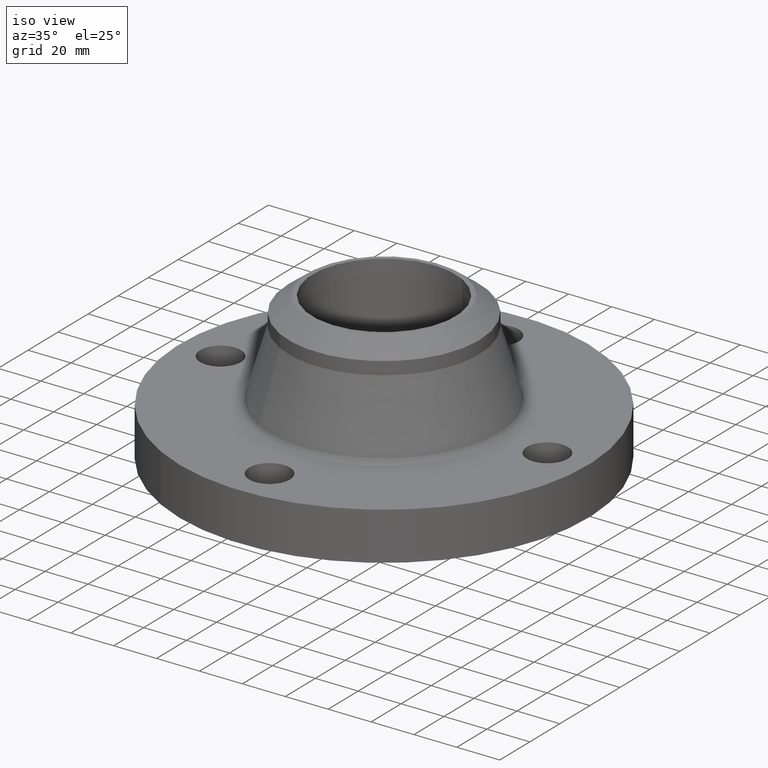
[diagram: clean part render]
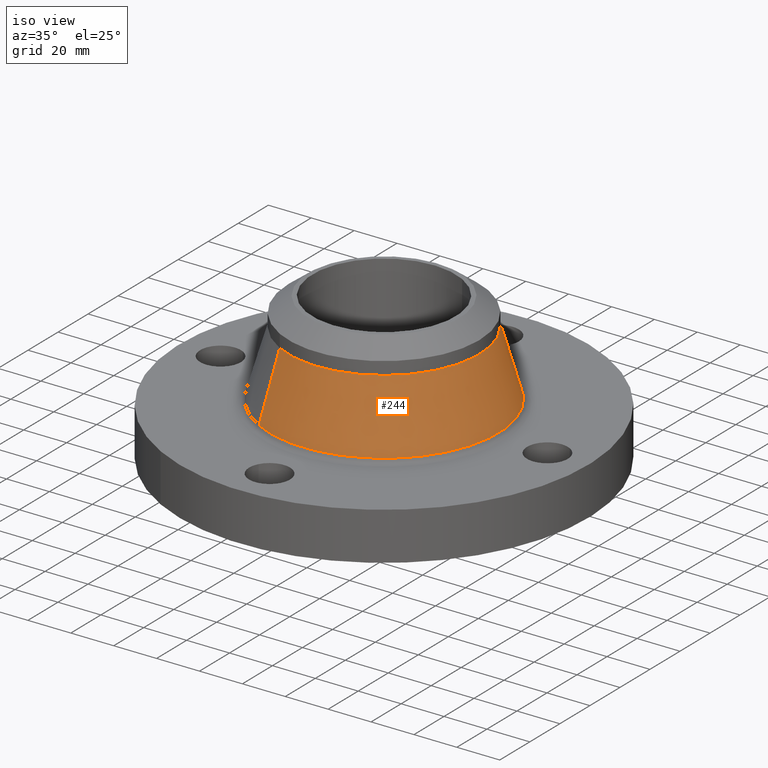
[diagram: same view with one face highlighted and labeled with its STEP entity id]
A machine part, iso view. The second image highlights one B-rep face of the part: STEP entity #244.
In plain terms, the highlighted conical surface has half-angle 16.113 deg.
Its self-contained STEP definition (entity closure, byte-faithful):
#180=AXIS2_PLACEMENT_3D('Circle Axis2P3D',#178,#179,$) ;
#217=AXIS2_PLACEMENT_3D('Cone Axis2P3D',#214,#215,#216) ;
#228=AXIS2_PLACEMENT_3D('Circle Axis2P3D',#226,#227,$) ;
#175=CARTESIAN_POINT('Vertex',(1.00677211293,1.84288399128,0.966696019123)) ;
#178=CARTESIAN_POINT('Axis2P3D Location',(0.,0.,0.966696019123)) ;
#182=CARTESIAN_POINT('Vertex',(-1.00677211293,-1.84288399128,0.966696019123)) ;
#214=CARTESIAN_POINT('Axis2P3D Location',(0.,0.,2.17810975471)) ;
#219=CARTESIAN_POINT('Line Origine',(0.922883402744,1.68932673729,1.57240288691)) ;
#223=CARTESIAN_POINT('Vertex',(0.838994692561,1.53576948331,2.17810975471)) ;
#226=CARTESIAN_POINT('Axis2P3D Location',(0.,0.,2.17810975471)) ;
#230=CARTESIAN_POINT('Vertex',(-0.838994692561,-1.53576948331,2.17810975471)) ;
#233=CARTESIAN_POINT('Line Origine',(-0.922883402744,-1.68932673729,1.57240288691)) ;
#179=DIRECTION('Axis2P3D Direction',(0.,0.,-0.0393700787402)) ;
#215=DIRECTION('Axis2P3D Direction',(0.,0.,-0.0393700787402)) ;
#216=DIRECTION('Axis2P3D XDirection',(-0.0188750212049,-0.0345504945626,0.)) ;
#220=DIRECTION('Vector Direction',(0.00523844454441,0.00958890841941,-0.0378234667116)) ;
#227=DIRECTION('Axis2P3D Direction',(0.,0.,-0.0393700787402)) ;
#234=DIRECTION('Vector Direction',(-0.00523844454441,-0.00958890841941,-0.0378234667116)) ;
#221=VECTOR('Line Direction',#220,0.0393700787402) ;
#235=VECTOR('Line Direction',#234,0.0393700787402) ;
#239=ORIENTED_EDGE('',*,*,#184,.F.) ;
#240=ORIENTED_EDGE('',*,*,#225,.T.) ;
#241=ORIENTED_EDGE('',*,*,#232,.T.) ;
#242=ORIENTED_EDGE('',*,*,#237,.F.) ;
#244=ADVANCED_FACE('PartBody',(#243),#218,.T.) ;
#181=CIRCLE('generated circle',#180,2.09995511682) ;
#229=CIRCLE('generated circle',#228,1.75000000001) ;
#218=CONICAL_SURFACE('Cone',#217,1.75000000001,0.281225458176) ;
#184=EDGE_CURVE('',#176,#183,#181,.T.) ;
#225=EDGE_CURVE('',#176,#224,#222,.F.) ;
#232=EDGE_CURVE('',#224,#231,#229,.T.) ;
#237=EDGE_CURVE('',#183,#231,#236,.F.) ;
#238=EDGE_LOOP('',(#239,#240,#241,#242)) ;
#243=FACE_OUTER_BOUND('',#238,.T.) ;
#222=LINE('Line',#219,#221) ;
#236=LINE('Line',#233,#235) ;
#176=VERTEX_POINT('',#175) ;
#183=VERTEX_POINT('',#182) ;
#224=VERTEX_POINT('',#223) ;
#231=VERTEX_POINT('',#230) ;